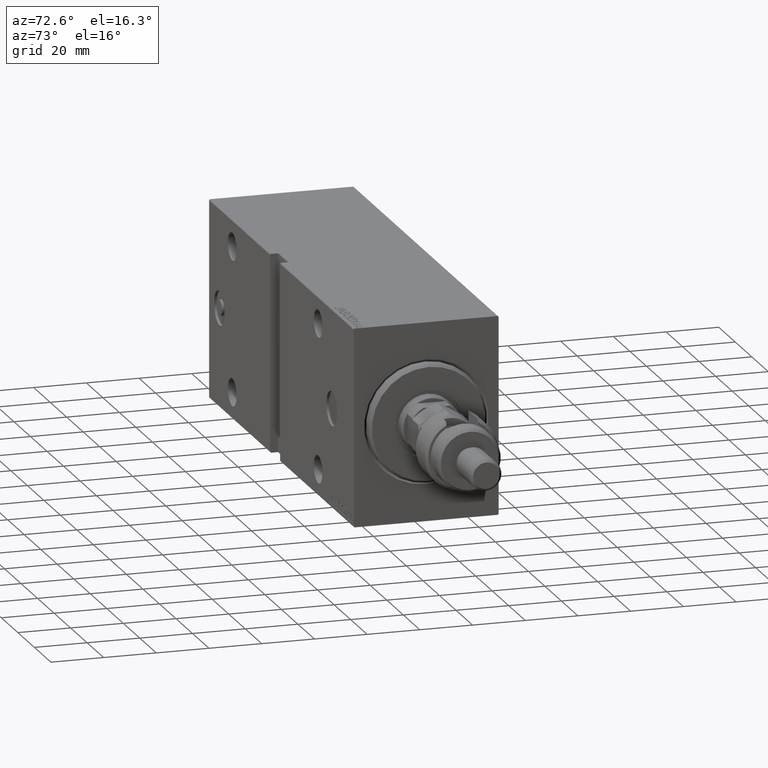
[diagram: clean part render]
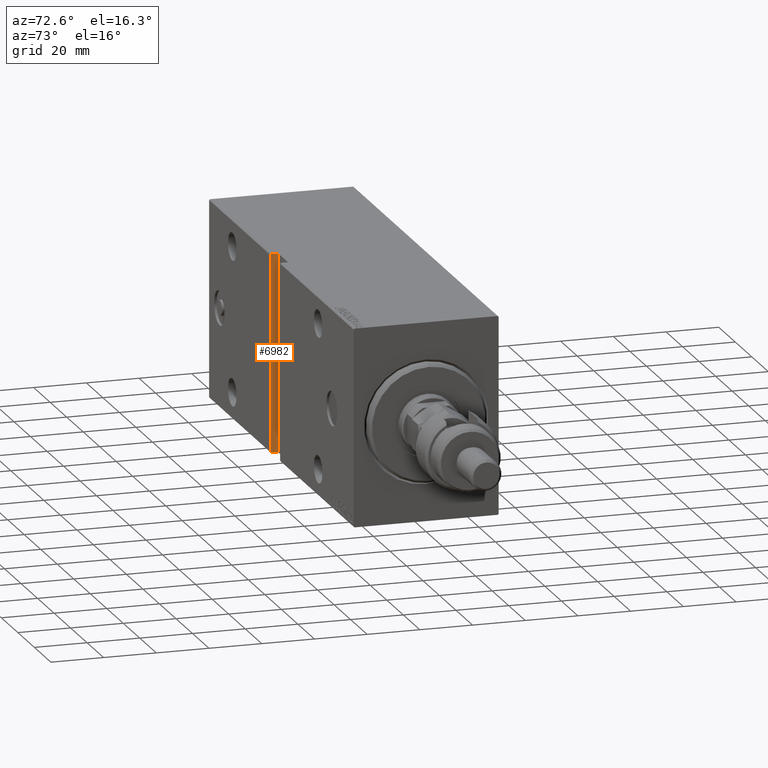
[diagram: same view with one face highlighted and labeled with its STEP entity id]
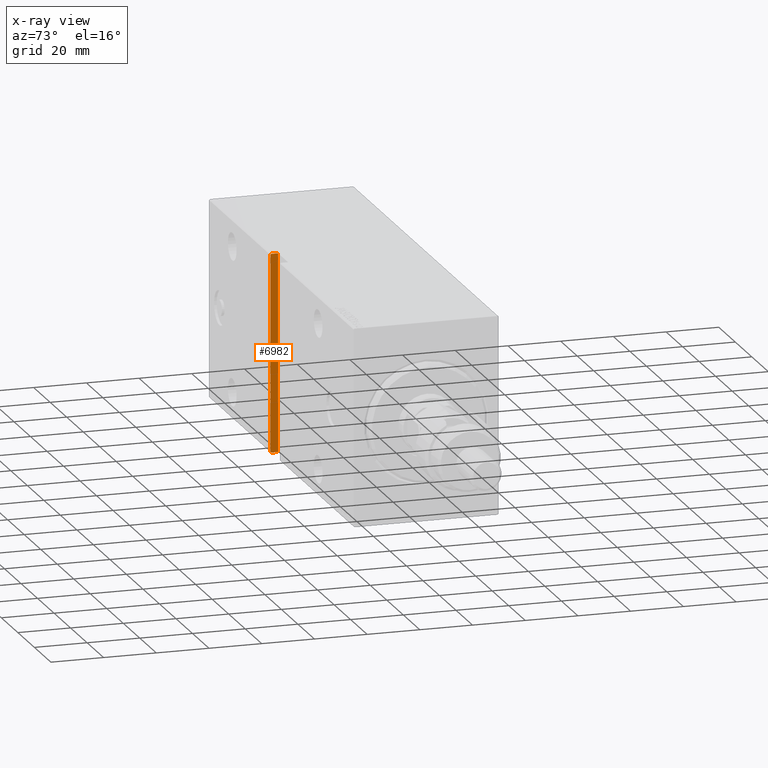
[diagram: x-ray of the same camera — body ghosted, the highlighted face saturated]
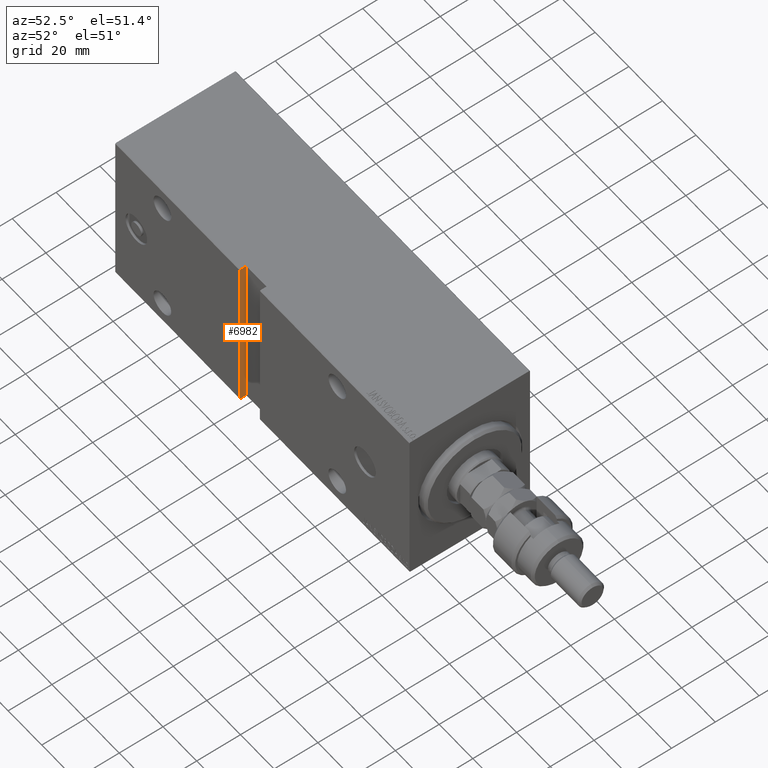
[diagram: same view with one face highlighted and labeled with its STEP entity id]
A machine part, auxiliary view. The second image highlights one B-rep face of the part: STEP entity #6982.
The next image is the same camera in x-ray: the body ghosted, the highlighted face saturated — about 0% of this face is hidden behind the body in this view.
A second angle (auxiliary view) of the same face is appended — the face is thin or edge-on in the first view.
In plain terms, the highlighted planar face has unit normal (-1, 0, 0).
Its self-contained STEP definition (entity closure, byte-faithful):
#386 = VERTEX_POINT ( 'NONE', #26667 ) ;
#1049 = EDGE_CURVE ( 'NONE', #18707, #5404, #2718, .T. ) ;
#1214 = EDGE_CURVE ( 'NONE', #30465, #35867, #32705, .T. ) ;
#1986 = VECTOR ( 'NONE', #27370, 1000.000000000000000 ) ;
#2260 = VECTOR ( 'NONE', #6705, 1000.000000000000000 ) ;
#2314 = DIRECTION ( 'NONE',  ( 1.000000000000000000, -2.334460538651191805E-32, 1.850371707708591851E-16 ) ) ;
#2718 = LINE ( 'NONE', #9855, #18603 ) ;
#3236 = EDGE_LOOP ( 'NONE', ( #10830, #27576, #27850, #6388, #35350, #19566 ) ) ;
#4722 = LINE ( 'NONE', #8391, #19967 ) ;
#5404 = VERTEX_POINT ( 'NONE', #24583 ) ;
#6388 = ORIENTED_EDGE ( 'NONE', *, *, #39707, .F. ) ;
#6705 = DIRECTION ( 'NONE',  ( 1.850371707708591851E-16, 9.251858538542959255E-17, -1.000000000000000000 ) ) ;
#6900 = CARTESIAN_POINT ( 'NONE',  ( 100.9999999999999716, 24.49999999999999645, 37.50000000000000711 ) ) ;
#6982 = ADVANCED_FACE ( 'NONE', ( #33032 ), #37408, .F. ) ;
#8237 = CARTESIAN_POINT ( 'NONE',  ( 100.9999999999999716, 27.49999999999999645, 37.20000000000007390 ) ) ;
#8391 = CARTESIAN_POINT ( 'NONE',  ( 100.9999999999999716, 24.50000000000000355, -37.50000000000008527 ) ) ;
#9016 = VECTOR ( 'NONE', #36152, 1000.000000000000000 ) ;
#9855 = CARTESIAN_POINT ( 'NONE',  ( 100.9999999999999716, 24.49999999999999645, 37.50000000000000711 ) ) ;
#9943 = CARTESIAN_POINT ( 'NONE',  ( 100.9999999999999716, 24.50000000000000355, -37.50000000000008527 ) ) ;
#10078 = DIRECTION ( 'NONE',  ( -0.000000000000000000, 1.000000000000000000, 1.261617073437677752E-16 ) ) ;
#10830 = ORIENTED_EDGE ( 'NONE', *, *, #1214, .T. ) ;
#12179 = VERTEX_POINT ( 'NONE', #34646 ) ;
#13897 = CARTESIAN_POINT ( 'NONE',  ( 100.9999999999999716, 27.20000000000006324, 37.50000000000000000 ) ) ;
#16747 = DIRECTION ( 'NONE',  ( 1.308410382236477539E-16, 0.7071067811865474617, -0.7071067811865474617 ) ) ;
#17104 = LINE ( 'NONE', #9943, #2260 ) ;
#17561 = EDGE_CURVE ( 'NONE', #5404, #30465, #26911, .T. ) ;
#18603 = VECTOR ( 'NONE', #10078, 1000.000000000000000 ) ;
#18707 = VERTEX_POINT ( 'NONE', #6900 ) ;
#18934 = DIRECTION ( 'NONE',  ( 1.850371707708591851E-16, 0.000000000000000000, -1.000000000000000000 ) ) ;
#19566 = ORIENTED_EDGE ( 'NONE', *, *, #17561, .T. ) ;
#19967 = VECTOR ( 'NONE', #45057, 1000.000000000000000 ) ;
#24583 = CARTESIAN_POINT ( 'NONE',  ( 100.9999999999999716, 27.20000000000005613, 37.50000000000000711 ) ) ;
#26667 = CARTESIAN_POINT ( 'NONE',  ( 100.9999999999999716, 27.20000000000003837, -37.50000000000008527 ) ) ;
#26911 = LINE ( 'NONE', #13897, #44720 ) ;
#27370 = DIRECTION ( 'NONE',  ( 1.308410382236484934E-16, -0.7071067811865434649, -0.7071067811865516806 ) ) ;
#27576 = ORIENTED_EDGE ( 'NONE', *, *, #34220, .T. ) ;
#27826 = LINE ( 'NONE', #41905, #1986 ) ;
#27850 = ORIENTED_EDGE ( 'NONE', *, *, #40967, .F. ) ;
#30465 = VERTEX_POINT ( 'NONE', #8237 ) ;
#32705 = LINE ( 'NONE', #42393, #9016 ) ;
#33032 = FACE_OUTER_BOUND ( 'NONE', #3236, .T. ) ;
#33528 = AXIS2_PLACEMENT_3D ( 'NONE', #33945, #2314, #18934 ) ;
#33945 = CARTESIAN_POINT ( 'NONE',  ( 100.9999999999999716, 24.50000000000000355, -37.50000000000008527 ) ) ;
#34220 = EDGE_CURVE ( 'NONE', #35867, #386, #27826, .T. ) ;
#34646 = CARTESIAN_POINT ( 'NONE',  ( 100.9999999999999716, 24.50000000000000355, -37.50000000000000711 ) ) ;
#35350 = ORIENTED_EDGE ( 'NONE', *, *, #1049, .T. ) ;
#35867 = VERTEX_POINT ( 'NONE', #44361 ) ;
#36152 = DIRECTION ( 'NONE',  ( 1.850371707708591851E-16, 9.251858538542959255E-17, -1.000000000000000000 ) ) ;
#37408 = PLANE ( 'NONE',  #33528 ) ;
#39707 = EDGE_CURVE ( 'NONE', #18707, #12179, #17104, .T. ) ;
#40967 = EDGE_CURVE ( 'NONE', #12179, #386, #4722, .T. ) ;
#41905 = CARTESIAN_POINT ( 'NONE',  ( 100.9999999999999716, 27.49999999999999645, -37.20000000000004547 ) ) ;
#42393 = CARTESIAN_POINT ( 'NONE',  ( 100.9999999999999716, 27.50000000000000355, -37.50000000000008527 ) ) ;
#44361 = CARTESIAN_POINT ( 'NONE',  ( 100.9999999999999716, 27.50000000000000355, -37.20000000000003837 ) ) ;
#44720 = VECTOR ( 'NONE', #16747, 1000.000000000000114 ) ;
#45057 = DIRECTION ( 'NONE',  ( -0.000000000000000000, 1.000000000000000000, 1.261617073437677752E-16 ) ) ;